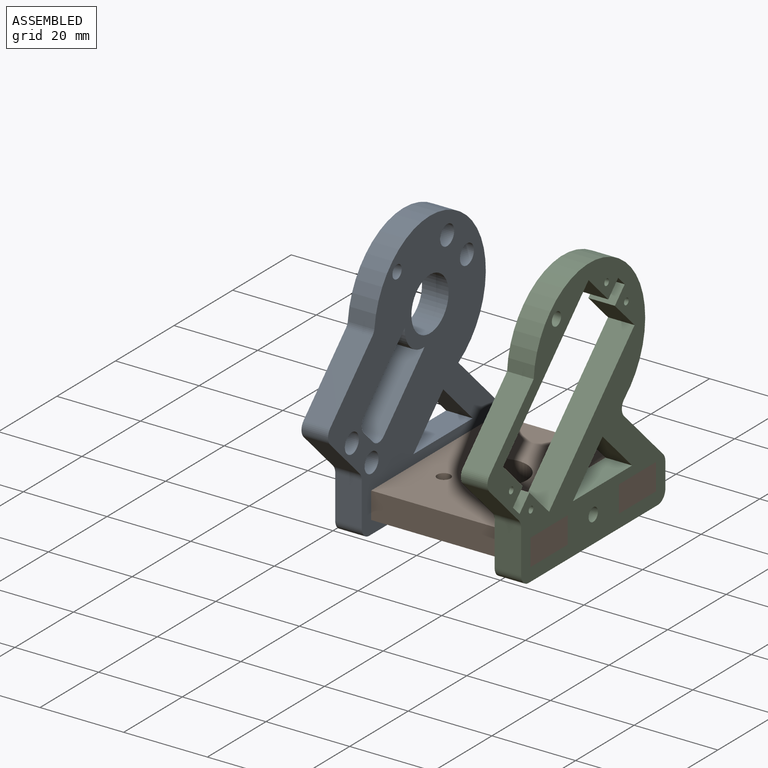
[diagram: assembled view]
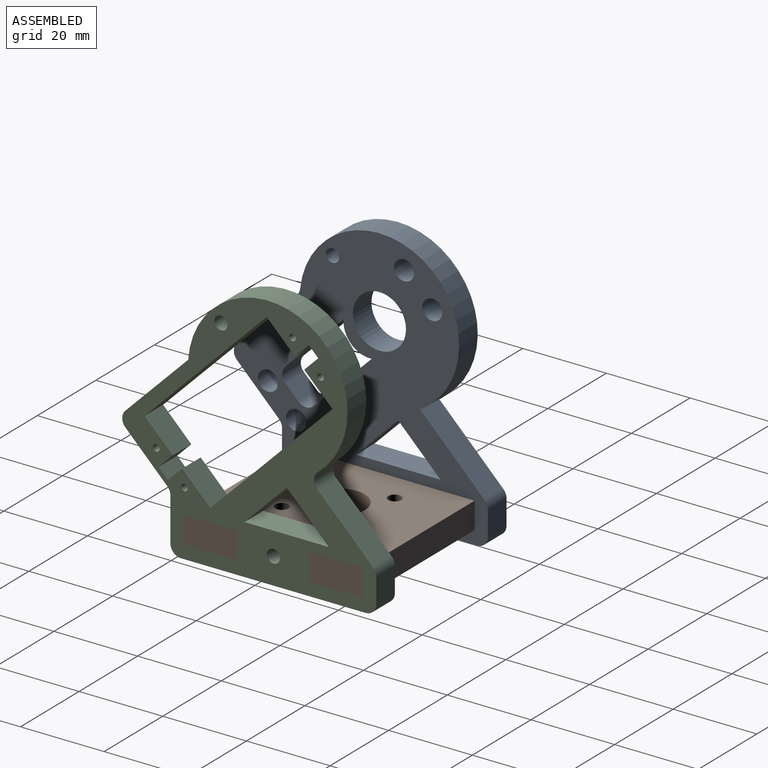
[diagram: assembled view, second angle]
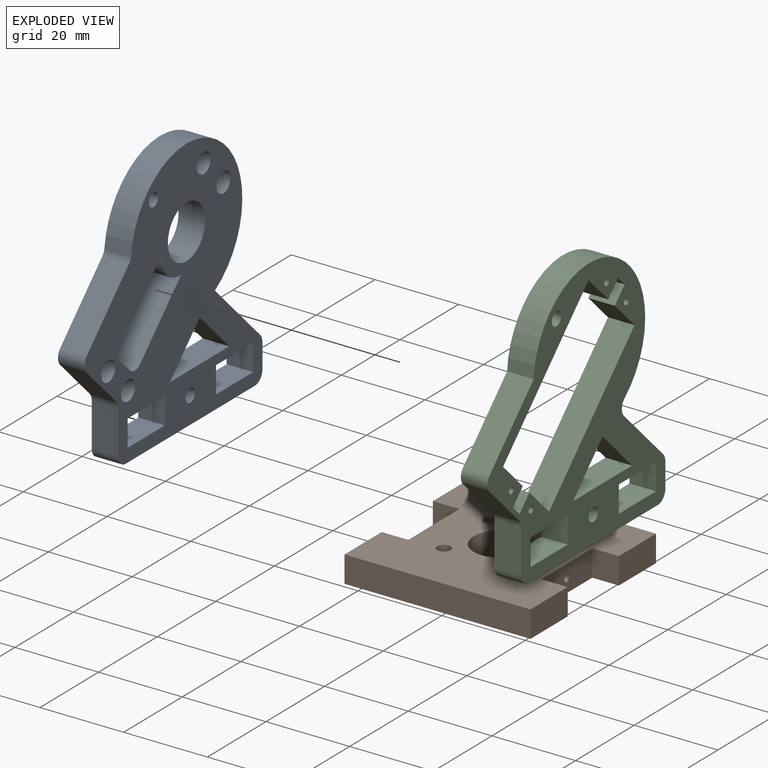
[diagram: exploded view]
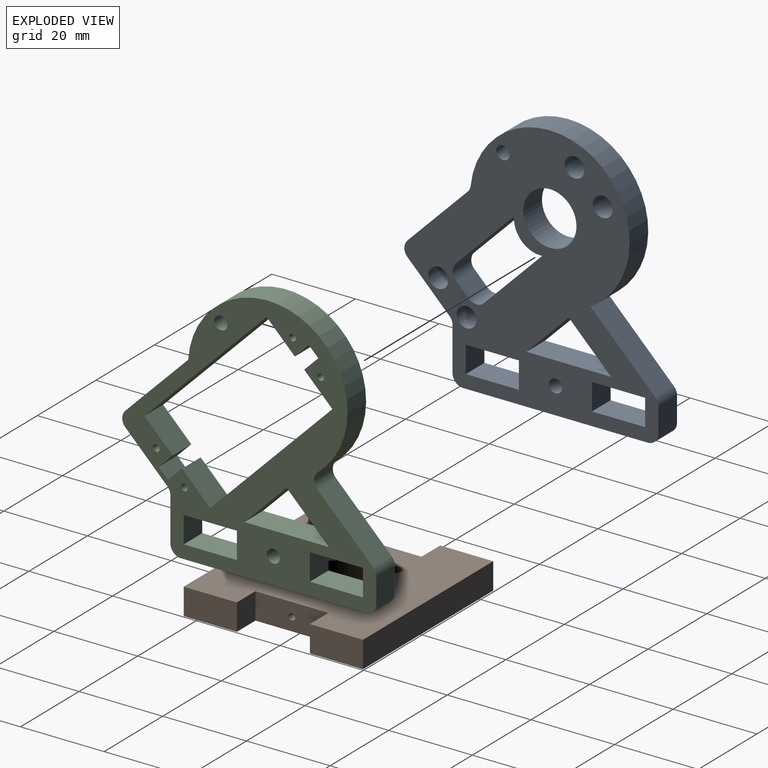
[diagram: exploded view, second angle]
ASSEMBLY  parts=3 mates=2
PART A: 39 faces, bbox 6.4x66.2x64.3 mm
  f0: plane 31.21x31.21mm, normal (0,0.71,-0.71), area 280.2mm2, adj f29,f30,f33,f38
  f1: plane 6.35x4.2mm, normal (0,0.71,0.71), area 37.7mm2, adj f29,f30,f33,f34
  f2: plane 21.92x6.35mm, normal (0,0,1), area 139.2mm2, adj f3,f29,f30,f34
  f3: cylinder r=19.05mm len=38.1mm, axis (-1,0,0), area 492.4mm2, adj f2,f29,f30,f35
  f4: plane 20.35x6.35mm, normal (0,-1,0), area 129.2mm2, adj f29,f30,f35,f36
  f5: plane 14.19x6.35mm, normal (0,0,-1), area 90.1mm2, adj f29,f30,f36,f37
  f6: plane 19.69x6.35mm, normal (0,1,0), area 125mm2, adj f7,f29,f30,f32
  f7: cylinder r=6.35mm len=9.53mm, axis (-1,0,0), area 68.4mm2, adj f6,f8,f29,f30
  f8: plane 19.69x6.35mm, normal (0,-1,0), area 125mm2, adj f7,f29,f30,f31
  f9: plane 14.29x6.35mm, normal (0,1,0), area 90.7mm2, adj f10,f24,f29,f30
  f10: plane 14.29x6.35mm, normal (0,0,-1), area 90.7mm2, adj f9,f24,f29,f30
  f11: plane 6.35x4.49mm, normal (0,0.71,0.71), area 40.3mm2, adj f12,f25,f29,f30
  f12: plane 8.98x8.98mm, normal (0,0.71,-0.71), area 80.6mm2, adj f11,f13,f29,f30
  f13: plane 6.35x4.49mm, normal (0,-0.71,-0.71), area 40.3mm2, adj f12,f25,f29,f30
  f14: plane 8.98x8.98mm, normal (0,0.71,-0.71), area 80.6mm2, adj f15,f26,f29,f30
  f15: plane 6.35x4.49mm, normal (0,-0.71,-0.71), area 40.3mm2, adj f14,f16,f29,f30
  f16: plane 8.98x8.98mm, normal (0,-0.71,0.71), area 80.6mm2, adj f15,f26,f29,f30
  f17: plane 6.35x4.45mm, normal (0,0,1), area 28.2mm2, adj f29,f30,f31,f32
  f18: cylinder r=1.59mm len=6.35mm, axis (-1,0,0), area 63.3mm2, adj f29,f30
  f19: cylinder r=2.38mm len=6.35mm, axis (-1,0,0), area 95mm2, adj f29,f30
  f20: cylinder r=2.38mm len=6.35mm, axis (-1,0,0), area 95mm2, adj f29,f30
  f21: cylinder r=1.59mm len=6.35mm, axis (-1,0,0), area 63.3mm2, adj f29,f30
  f22: cylinder r=6.35mm len=12.7mm, axis (-1,0,0), area 253.4mm2, adj f29,f30
  f23: cylinder r=2.38mm len=6.35mm, axis (-1,0,0), area 95mm2, adj f29,f30
  f24: plane 14.29x14.29mm, normal (0,-0.71,0.71), area 128.3mm2, adj f9,f10,f29,f30
  f25: plane 8.98x8.98mm, normal (0,-0.71,0.71), area 80.6mm2, adj f11,f13,f29,f30
  f26: plane 6.35x4.49mm, normal (0,0.71,0.71), area 40.3mm2, adj f14,f16,f29,f30
  f27: cylinder r=2.38mm len=6.35mm, axis (-1,0,0), area 95mm2, adj f29,f30
  f28: plane 7.33x7.33mm, normal (0,-0.71,-0.71), area 65.8mm2, adj f29,f30,f37,f38
  f29: plane 66.15x64.28mm, normal (1,0,0), area 1833.8mm2, adj f0,f1,f2,f3,f4,f5,f6,f7
  f30: plane 66.15x64.28mm, normal (-1,0,0), area 1833.8mm2, adj f0,f1,f2,f3,f4,f5,f6,f7
  f31: cylinder r=2.54mm len=6.35mm, axis (1,0,0), area 25.3mm2, adj f8,f17,f29,f30
  f32: cylinder r=2.54mm len=6.35mm, axis (1,0,0), area 25.3mm2, adj f6,f17,f29,f30
  f33: cylinder r=2.54mm len=6.35mm, axis (-1,0,0), area 25.3mm2, adj f0,f1,f29,f30
  f34: cylinder r=2.54mm len=6.35mm, axis (-1,0,0), area 12.7mm2, adj f1,f2,f29,f30
  f35: cylinder r=2.54mm len=6.35mm, axis (-1,0,0), area 10.9mm2, adj f3,f4,f29,f30
  f36: cylinder r=2.54mm len=6.35mm, axis (-1,0,0), area 25.3mm2, adj f4,f5,f29,f30
  f37: cylinder r=2.54mm len=6.35mm, axis (1,0,0), area 12.7mm2, adj f5,f28,f29,f30
  f38: cylinder r=2.54mm len=6.35mm, axis (-1,0,0), area 25.3mm2, adj f0,f28,f29,f30
PART B: 23 faces, bbox 44.5x42.9x6.4 mm
  f0: plane 6.35x6.35mm, normal (0,1,0), area 40.3mm2, adj f1,f15,f17,f18
  f1: plane 12.7x6.35mm, normal (-1,0,0), area 80.6mm2, adj f0,f2,f17,f18
  f2: plane 44.45x6.35mm, normal (0,-1,0), area 282.3mm2, adj f1,f3,f17,f18
  f3: plane 12.7x6.35mm, normal (1,0,0), area 80.6mm2, adj f2,f4,f17,f18
  f4: plane 6.35x6.35mm, normal (0,1,0), area 40.3mm2, adj f3,f5,f17,f18
  f5: plane 17.46x6.35mm, normal (1,0,0), area 108.9mm2, adj f4,f6,f17,f18,f21
  f6: plane 6.35x6.35mm, normal (0,-1,0), area 40.3mm2, adj f5,f7,f17,f18
  f7: plane 12.7x6.35mm, normal (1,0,0), area 80.6mm2, adj f6,f8,f17,f18
  f8: plane 44.45x6.35mm, normal (0,1,0), area 282.3mm2, adj f7,f9,f17,f18
  f9: plane 12.7x6.35mm, normal (-1,0,0), area 80.6mm2, adj f8,f10,f17,f18
  f10: plane 6.35x6.35mm, normal (0,-1,0), area 40.3mm2, adj f9,f15,f17,f18
  f11: cylinder r=1.59mm len=6.35mm, axis (0,0,-1), area 63.3mm2, adj f17,f18
  f12: cylinder r=1.59mm len=6.35mm, axis (0,0,-1), area 63.3mm2, adj f17,f18
  f13: cylinder r=1.59mm len=6.35mm, axis (0,0,-1), area 63.3mm2, adj f17,f18
  f14: cylinder r=6.35mm len=12.7mm, axis (0,0,-1), area 253.4mm2, adj f17,f18
  f15: plane 17.46x6.35mm, normal (-1,0,0), area 108.9mm2, adj f0,f10,f17,f18,f19
  f16: cylinder r=1.59mm len=6.35mm, axis (0,0,-1), area 63.3mm2, adj f17,f18
  f17: plane 44.45x42.86mm, normal (0,0,1), area 1525.1mm2, adj f0,f1,f2,f3,f4,f5,f6,f7
  f18: plane 44.45x42.86mm, normal (0,0,-1), area 1525.1mm2, adj f0,f1,f2,f3,f4,f5,f6,f7
  f19: cylinder r=0.79mm len=1.59mm, axis (-1,0,0), area 7.9mm2, adj f15,f20
  f20: plane 1.59x1.59mm, normal (-1,0,0), area 2mm2, adj f19
  f21: cylinder r=0.79mm len=1.59mm, axis (1,0,0), area 7.9mm2, adj f5,f22
  f22: plane 1.59x1.59mm, normal (1,0,0), area 2mm2, adj f21
PART C: 44 faces, bbox 6.4x66.2x64.3 mm
  f0: plane 14.29x6.35mm, normal (0,1,0), area 90.7mm2, adj f1,f28,f36,f37
  f1: plane 14.29x6.35mm, normal (0,0,-1), area 90.7mm2, adj f0,f28,f36,f37
  f2: plane 6.35x4.49mm, normal (0,0.71,0.71), area 40.3mm2, adj f3,f29,f36,f37
  f3: plane 8.98x8.98mm, normal (0,0.71,-0.71), area 80.6mm2, adj f2,f4,f36,f37
  f4: plane 6.35x4.49mm, normal (0,-0.71,-0.71), area 40.3mm2, adj f3,f29,f36,f37
  f5: plane 8.98x8.98mm, normal (0,0.71,-0.71), area 80.6mm2, adj f6,f30,f36,f37
  f6: plane 6.35x4.49mm, normal (0,-0.71,-0.71), area 40.3mm2, adj f5,f7,f36,f37
  f7: plane 8.98x8.98mm, normal (0,-0.71,0.71), area 80.6mm2, adj f6,f30,f36,f37
  f8: plane 18.89x6.35mm, normal (0,0,1), area 120mm2, adj f36,f37,f38,f43
  f9: cylinder r=19.05mm len=38.1mm, axis (-1,0,0), area 479.8mm2, adj f10,f36,f37,f38
  f10: plane 21.27x6.35mm, normal (0,-1,0), area 135.1mm2, adj f9,f36,f37,f39
  f11: plane 14.19x6.35mm, normal (0,0,-1), area 90.1mm2, adj f36,f37,f39,f40
  f12: plane 7.33x7.33mm, normal (0,-0.71,-0.71), area 65.8mm2, adj f36,f37,f40,f41
  f13: plane 31.21x31.21mm, normal (0,0.71,-0.71), area 280.2mm2, adj f36,f37,f41,f42
  f14: plane 6.35x4.76mm, normal (0,-1,0), area 30.2mm2, adj f15,f33,f36,f37
  f15: plane 6.35x3.18mm, normal (0,0,1), area 20.2mm2, adj f14,f16,f36,f37
  f16: plane 6.35x4.76mm, normal (0,1,0), area 30.2mm2, adj f15,f17,f36,f37
  f17: plane 9.53x6.35mm, normal (0,0,1), area 60.5mm2, adj f16,f18,f36,f37
  f18: plane 41.28x6.35mm, normal (0,1,0), area 262.1mm2, adj f17,f19,f36,f37
  f19: plane 9.53x6.35mm, normal (0,0,-1), area 60.5mm2, adj f18,f20,f36,f37
  f20: plane 6.35x4.76mm, normal (0,1,0), area 30.2mm2, adj f19,f21,f36,f37
  f21: plane 6.35x3.18mm, normal (0,0,-1), area 20.2mm2, adj f20,f22,f36,f37
  f22: plane 6.35x4.76mm, normal (0,-1,0), area 30.2mm2, adj f21,f23,f36,f37
  f23: plane 9.53x6.35mm, normal (0,0,-1), area 60.5mm2, adj f22,f24,f36,f37
  f24: plane 41.28x6.35mm, normal (0,-1,0), area 262.1mm2, adj f23,f33,f36,f37
  f25: cylinder r=0.79mm len=6.35mm, axis (-1,0,0), area 31.7mm2, adj f36,f37
  f26: cylinder r=1.59mm len=6.35mm, axis (-1,0,0), area 63.3mm2, adj f36,f37
  f27: cylinder r=0.79mm len=6.35mm, axis (-1,0,0), area 31.7mm2, adj f36,f37
  f28: plane 14.29x14.29mm, normal (0,-0.71,0.71), area 128.3mm2, adj f0,f1,f36,f37
  f29: plane 8.98x8.98mm, normal (0,-0.71,0.71), area 80.6mm2, adj f2,f4,f36,f37
  f30: plane 6.35x4.49mm, normal (0,0.71,0.71), area 40.3mm2, adj f5,f7,f36,f37
  f31: plane 6.35x4.2mm, normal (0,0.71,0.71), area 37.7mm2, adj f36,f37,f42,f43
  f32: cylinder r=0.79mm len=6.35mm, axis (-1,0,0), area 31.7mm2, adj f36,f37
  f33: plane 9.53x6.35mm, normal (0,0,1), area 60.5mm2, adj f14,f24,f36,f37
  f34: cylinder r=0.79mm len=6.35mm, axis (-1,0,0), area 31.7mm2, adj f36,f37
  f35: cylinder r=1.59mm len=6.35mm, axis (-1,0,0), area 63.3mm2, adj f36,f37
  f36: plane 66.15x64.28mm, normal (1,0,0), area 1272.8mm2, adj f0,f1,f2,f3,f4,f5,f6,f7
  f37: plane 66.15x64.28mm, normal (-1,0,0), area 1272.8mm2, adj f0,f1,f2,f3,f4,f5,f6,f7
  f38: cylinder r=2.54mm len=6.35mm, axis (-1,0,0), area 27mm2, adj f8,f9,f36,f37
  f39: cylinder r=2.54mm len=6.35mm, axis (-1,0,0), area 25.3mm2, adj f10,f11,f36,f37
  f40: cylinder r=2.54mm len=6.35mm, axis (1,0,0), area 12.7mm2, adj f11,f12,f36,f37
  f41: cylinder r=2.54mm len=6.35mm, axis (-1,0,0), area 25.3mm2, adj f12,f13,f36,f37
  f42: cylinder r=2.54mm len=6.35mm, axis (-1,0,0), area 25.3mm2, adj f13,f31,f36,f37
  f43: cylinder r=2.54mm len=6.35mm, axis (-1,0,0), area 12.7mm2, adj f8,f31,f36,f37
PLACE A rot(axis=(-1,0,0),45deg) t=(-22.22,-1.33,39)mm
PLACE B at identity fixed
PLACE C rot(axis=(-1,0,0),45deg) t=(15.88,-1.33,39)mm
MATE revolute B.f3 <-> C.f36  axis (1,0,0) through (22.22,-15.08,3.18)mm
MATE revolute B.f1 <-> A.f30  axis (-1,0,0) through (-22.22,-15.08,3.18)mm
